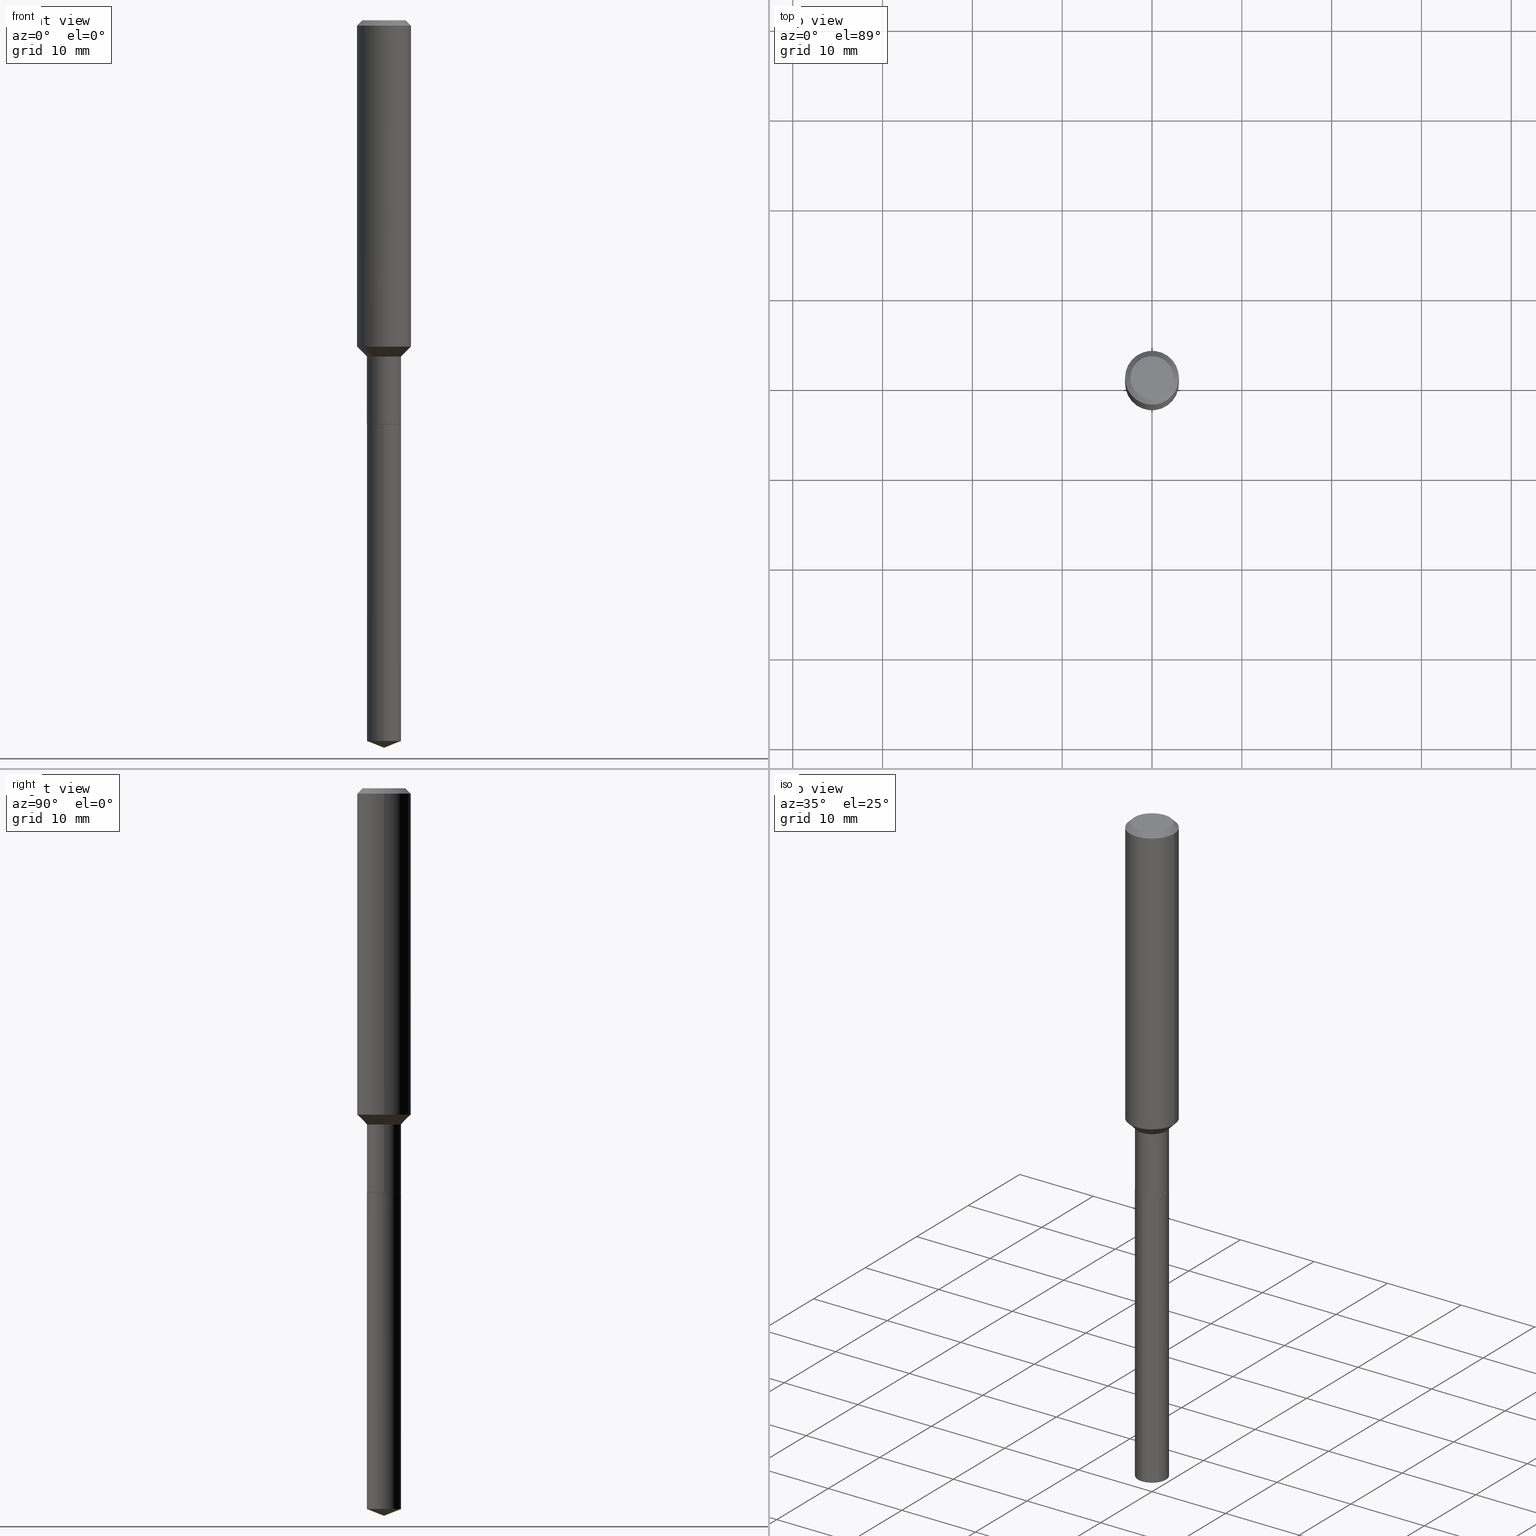
[diagram: canonical four-view strip — front | top / right | iso, engineering-drawing reading convention]
A machine part, canonical four-view strip (front | top / right | iso — engineering-drawing reading convention). The complete STEP part file that produces these views, byte-faithful:
ISO-10303-21;
HEADER;
FILE_DESCRIPTION (( 'STEP AP203' ),
    '1' );
FILE_NAME ('66614.STEP',
    '2024-04-25T02:03:16',
    ( '' ),
    ( '' ),
    'SwSTEP 2.0',
    'SolidWorks 2023',
    '' );
FILE_SCHEMA (( 'CONFIG_CONTROL_DESIGN' ));
ENDSEC;

DATA;
#1 = FACE_OUTER_BOUND ( 'NONE', #393, .T. ) ;
#2 = AXIS2_PLACEMENT_3D ( 'NONE', #414, #298, #69 ) ;
#3 = ORIENTED_EDGE ( 'NONE', *, *, #99, .F. ) ;
#4 = ORIENTED_EDGE ( 'NONE', *, *, #95, .T. ) ;
#5 = APPROVAL_ROLE ( '' ) ;
#6 = CC_DESIGN_PERSON_AND_ORGANIZATION_ASSIGNMENT ( #356, #166, ( #363 ) ) ;
#7 = COORDINATED_UNIVERSAL_TIME_OFFSET ( 5, 0, .BEHIND. ) ;
#8 = DIRECTION ( 'NONE',  ( 6.611014441532061856E-15, 0.9304175679820264611, 0.3665012267242923616 ) ) ;
#9 = ORIENTED_EDGE ( 'NONE', *, *, #211, .F. ) ;
#10 = DATE_AND_TIME ( #48, #42 ) ;
#11 = EDGE_LOOP ( 'NONE', ( #322, #134, #445, #466 ) ) ;
#12 = CONICAL_SURFACE ( 'NONE', #37, 99.94676754583939271, 1.195550537616117515 ) ;
#13 = ADVANCED_FACE ( 'NONE', ( #24 ), #303, .T. ) ;
#14 = AXIS2_PLACEMENT_3D ( 'NONE', #412, #77, #121 ) ;
#15 = PRODUCT_RELATED_PRODUCT_CATEGORY ( 'detail', '', ( #363 ) ) ;
#16 = ADVANCED_FACE ( 'NONE', ( #186 ), #112, .F. ) ;
#17 = CONICAL_SURFACE ( 'NONE', #404, 0.07479999999999997762, 0.7853981633974498333 ) ;
#18 = AXIS2_PLACEMENT_3D ( 'NONE', #86, #357, #200 ) ;
#19 = EDGE_CURVE ( 'NONE', #43, #376, #278, .T. ) ;
#20 = CARTESIAN_POINT ( 'NONE',  ( 3.603887379675036317E-29, -5.145396049053143934E-15, -1.473700000000000232 ) ) ;
#21 = CARTESIAN_POINT ( 'NONE',  ( 4.716267017698007905E-46, -6.733579360998555036E-32, -1.928573779297252010E-17 ) ) ;
#22 = ORIENTED_EDGE ( 'NONE', *, *, #294, .F. ) ;
#23 = DIRECTION ( 'NONE',  ( -2.445468806185136597E-29, 3.491481338843145583E-15, 1.000000000000000000 ) ) ;
#24 = FACE_OUTER_BOUND ( 'NONE', #461, .T. ) ;
#25 = CARTESIAN_POINT ( 'NONE',  ( 5.314859663485982660E-16, 0.07479999999999381588, -1.771700000000000719 ) ) ;
#26 = MANIFOLD_SOLID_BREP ( 'Body-Move/Copy2[2]', #405 ) ;
#27 = ADVANCED_FACE ( 'NONE', ( #119 ), #268, .T. ) ;
#28 = DIRECTION ( 'NONE',  ( 1.000000000000000000, -6.982962677686266711E-15, 4.876176775795936353E-29 ) ) ;
#29 = DIRECTION ( 'NONE',  ( 1.000000000000000000, -6.982962677686261977E-15, 0.000000000000000000 ) ) ;
#30 = AXIS2_PLACEMENT_3D ( 'NONE', #377, #33, #29 ) ;
#31 = DIRECTION ( 'NONE',  ( -2.445468806185136597E-29, 3.491481338843145583E-15, 1.000000000000000000 ) ) ;
#32 = EDGE_LOOP ( 'NONE', ( #3, #373, #482 ) ) ;
#33 = DIRECTION ( 'NONE',  ( -2.445468806185136597E-29, 3.491481338843145583E-15, 1.000000000000000000 ) ) ;
#34 = CARTESIAN_POINT ( 'NONE',  ( -0.07479999999999997762, -5.133267931857507370E-15, -1.473700000000000232 ) ) ;
#35 = LINE ( 'NONE', #348, #199 ) ;
#36 = ADVANCED_FACE ( 'NONE', ( #74 ), #485, .T. ) ;
#37 = AXIS2_PLACEMENT_3D ( 'NONE', #381, #346, #313 ) ;
#38 = DIRECTION ( 'NONE',  ( 2.445468806185136597E-29, -3.491481338843145583E-15, -1.000000000000000000 ) ) ;
#39 = VERTEX_POINT ( 'NONE', #411 ) ;
#40 = LINE ( 'NONE', #202, #79 ) ;
#41 = APPROVAL_ROLE ( '' ) ;
#42 = LOCAL_TIME ( 22, 3, 16.00000000000000000, #7 ) ;
#43 = VERTEX_POINT ( 'NONE', #311 ) ;
#44 = DIRECTION ( 'NONE',  ( -6.982962677686266711E-15, -1.000000000000000000, 0.000000000000000000 ) ) ;
#45 = PERSON_AND_ORGANIZATION ( #415, #139 ) ;
#46 = DIRECTION ( 'NONE',  ( -0.7071067811865486830, 7.493145998870358893E-15, 0.7071067811865464625 ) ) ;
#47 = SHAPE_DEFINITION_REPRESENTATION ( #122, #210 ) ;
#48 = CALENDAR_DATE ( 2024, 24, 4 ) ;
#49 = LINE ( 'NONE', #129, #72 ) ;
#50 = VERTEX_POINT ( 'NONE', #453 ) ;
#51 = VECTOR ( 'NONE', #444, 39.37007874015748143 ) ;
#52 = AXIS2_PLACEMENT_3D ( 'NONE', #272, #297, #232 ) ;
#53 = EDGE_CURVE ( 'NONE', #228, #183, #35, .T. ) ;
#54 = CIRCLE ( 'NONE', #184, 0.07480000000000000537 ) ;
#55 = DIRECTION ( 'NONE',  ( -2.445468806185136877E-29, 3.491481338843145188E-15, 1.000000000000000000 ) ) ;
#56 = CIRCLE ( 'NONE', #14, 0.07430000000000000493 ) ;
#57 = EDGE_CURVE ( 'NONE', #320, #282, #338, .T. ) ;
#58 = DIRECTION ( 'NONE',  ( -2.445498752953222356E-29, 3.491438453366782686E-15, 1.000000000000000000 ) ) ;
#59 = VERTEX_POINT ( 'NONE', #425 ) ;
#60 = VECTOR ( 'NONE', #104, 39.37007874015748143 ) ;
#61 =( CONVERSION_BASED_UNIT ( 'INCH', #416 ) LENGTH_UNIT ( ) NAMED_UNIT ( #260 ) );
#62 = DIRECTION ( 'NONE',  ( -2.445468806185136877E-29, 3.491481338843145188E-15, 1.000000000000000000 ) ) ;
#63 = ORIENTED_EDGE ( 'NONE', *, *, #203, .F. ) ;
#64 = DIRECTION ( 'NONE',  ( 1.000000000000000000, -6.982962677686265922E-15, 4.876176775795935793E-29 ) ) ;
#65 = ORIENTED_EDGE ( 'NONE', *, *, #216, .T. ) ;
#66 = CIRCLE ( 'NONE', #230, 0.1181000000000001632 ) ;
#67 = CARTESIAN_POINT ( 'NONE',  ( 4.332637083918206987E-29, -6.185857488028401870E-15, -1.771700000000000497 ) ) ;
#68 = ORIENTED_EDGE ( 'NONE', *, *, #253, .T. ) ;
#69 = DIRECTION ( 'NONE',  ( 1.000000000000000000, -6.982962677686264344E-15, 0.000000000000000000 ) ) ;
#70 = CIRCLE ( 'NONE', #128, 0.1181000000000001632 ) ;
#72 = VECTOR ( 'NONE', #8, 39.37007874015748143 ) ;
#71 = FACE_OUTER_BOUND ( 'NONE', #124, .T. ) ;
#73 = CC_DESIGN_PERSON_AND_ORGANIZATION_ASSIGNMENT ( #394, #284, ( #332 ) ) ;
#74 = FACE_OUTER_BOUND ( 'NONE', #81, .T. ) ;
#75 = ORIENTED_EDGE ( 'NONE', *, *, #306, .F. ) ;
#76 = ADVANCED_FACE ( 'NONE', ( #158 ), #292, .T. ) ;
#77 = DIRECTION ( 'NONE',  ( -2.445468806185136597E-29, 3.491481338843145583E-15, 1.000000000000000000 ) ) ;
#78 = VERTEX_POINT ( 'NONE', #316 ) ;
#79 = VECTOR ( 'NONE', #197, 39.37007874015748143 ) ;
#80 = SECURITY_CLASSIFICATION_LEVEL ( 'unclassified' ) ;
#81 = EDGE_LOOP ( 'NONE', ( #340, #262, #131, #244 ) ) ;
#82 = ADVANCED_FACE ( 'NONE', ( #164 ), #280, .F. ) ;
#83 = AXIS2_PLACEMENT_3D ( 'NONE', #152, #421, #489 ) ;
#84 = PERSON_AND_ORGANIZATION ( #415, #139 ) ;
#85 = CIRCLE ( 'NONE', #364, 0.07479999999999997762 ) ;
#86 = CARTESIAN_POINT ( 'NONE',  ( 2.358133508849003952E-46, -3.366789680499277518E-32, -9.642868896486260050E-18 ) ) ;
#87 = CARTESIAN_POINT ( 'NONE',  ( 5.776197320209328408E-31, -8.246878922347560526E-17, -0.02362000000000014435 ) ) ;
#88 = LOCAL_TIME ( 22, 3, 16.00000000000000000, #350 ) ;
#89 = ORIENTED_EDGE ( 'NONE', *, *, #253, .F. ) ;
#90 = DIRECTION ( 'NONE',  ( 2.445468806185136597E-29, -3.491481338843145583E-15, -1.000000000000000000 ) ) ;
#91 = EDGE_LOOP ( 'NONE', ( #9, #135 ) ) ;
#92 = PERSON_AND_ORGANIZATION ( #415, #139 ) ;
#93 = CARTESIAN_POINT ( 'NONE',  ( 5.776197320209328408E-31, -8.246878922347560526E-17, -0.02362000000000014435 ) ) ;
#94 = VERTEX_POINT ( 'NONE', #246 ) ;
#95 = EDGE_CURVE ( 'NONE', #417, #427, #428, .T. ) ;
#96 = CARTESIAN_POINT ( 'NONE',  ( 7.798589409789792218E-29, -1.113434918818361475E-14, -3.189000000000000501 ) ) ;
#97 = CARTESIAN_POINT ( 'NONE',  ( 4.331414349515115307E-29, -6.184111747358981944E-15, -1.771200000000000552 ) ) ;
#98 = AXIS2_PLACEMENT_3D ( 'NONE', #21, #182, #476 ) ;
#99 = EDGE_CURVE ( 'NONE', #327, #133, #49, .T. ) ;
#100 = DIRECTION ( 'NONE',  ( 1.000000000000000000, -6.982962677686261977E-15, 0.000000000000000000 ) ) ;
#101 = DIRECTION ( 'NONE',  ( 0.7071067811865486830, -2.468850131082268893E-15, 0.7071067811865464625 ) ) ;
#102 = EDGE_CURVE ( 'NONE', #376, #43, #329, .T. ) ;
#103 = AXIS2_PLACEMENT_3D ( 'NONE', #167, #159, #433 ) ;
#104 = DIRECTION ( 'NONE',  ( -2.445498752953222356E-29, 3.491438453366782686E-15, 1.000000000000000000 ) ) ;
#105 = ORIENTED_EDGE ( 'NONE', *, *, #114, .F. ) ;
#106 = DIRECTION ( 'NONE',  ( 1.000000000000000000, -6.982962677686267499E-15, 4.875432709231658792E-29 ) ) ;
#107 = EDGE_CURVE ( 'NONE', #327, #50, #440, .T. ) ;
#108 = DIRECTION ( 'NONE',  ( -6.982962677686266711E-15, -1.000000000000000000, 3.652203200085913145E-15 ) ) ;
#109 = CARTESIAN_POINT ( 'NONE',  ( -8.848083599624647937E-28, 1.263239336174787439E-13, 36.18107874015748138 ) ) ;
#110 = AXIS2_PLACEMENT_3D ( 'NONE', #93, #38, #460 ) ;
#111 =( NAMED_UNIT ( * ) SI_UNIT ( $, .STERADIAN. ) SOLID_ANGLE_UNIT ( ) );
#112 = PLANE ( 'NONE',  #214 ) ;
#113 = APPROVAL ( #251, 'UNSPECIFIED' ) ;
#114 = EDGE_CURVE ( 'NONE', #417, #183, #85, .T. ) ;
#115 = DIRECTION ( 'NONE',  ( -2.445498752953222356E-29, 3.491438453366782686E-15, 1.000000000000000000 ) ) ;
#116 = CARTESIAN_POINT ( 'NONE',  ( 4.332637083918206987E-29, -6.185857488028401870E-15, -1.771700000000000497 ) ) ;
#117 = DIRECTION ( 'NONE',  ( 1.000000000000000000, -6.982962677686270655E-15, 0.000000000000000000 ) ) ;
#118 = AXIS2_PLACEMENT_3D ( 'NONE', #150, #318, #283 ) ;
#119 = FACE_OUTER_BOUND ( 'NONE', #378, .T. ) ;
#120 = LOCAL_TIME ( 22, 3, 16.00000000000000000, #435 ) ;
#121 = DIRECTION ( 'NONE',  ( 1.000000000000000000, -6.982962677686268288E-15, 0.000000000000000000 ) ) ;
#122 = PRODUCT_DEFINITION_SHAPE ( 'NONE', 'NONE',  #332 ) ;
#123 = PERSON_AND_ORGANIZATION ( #415, #139 ) ;
#124 = EDGE_LOOP ( 'NONE', ( #293, #302, #22, #63 ) ) ;
#125 = EDGE_CURVE ( 'NONE', #175, #282, #285, .T. ) ;
#126 = CALENDAR_DATE ( 2024, 24, 4 ) ;
#127 = EDGE_LOOP ( 'NONE', ( #401, #270 ) ) ;
#128 = AXIS2_PLACEMENT_3D ( 'NONE', #309, #452, #117 ) ;
#129 = CARTESIAN_POINT ( 'NONE',  ( 7.798696453656895021E-29, -1.113419722778667310E-14, -3.189000000000000501 ) ) ;
#130 = CARTESIAN_POINT ( 'NONE',  ( 0.1181000000000001632, -5.818902799315985254E-15, -1.430400000000000116 ) ) ;
#131 = ORIENTED_EDGE ( 'NONE', *, *, #19, .F. ) ;
#132 = APPROVAL_DATE_TIME ( #10, #399 ) ;
#133 = VERTEX_POINT ( 'NONE', #239 ) ;
#134 = ORIENTED_EDGE ( 'NONE', *, *, #173, .T. ) ;
#135 = ORIENTED_EDGE ( 'NONE', *, *, #227, .F. ) ;
#136 = AXIS2_PLACEMENT_3D ( 'NONE', #109, #418, #149 ) ;
#137 = CARTESIAN_POINT ( 'NONE',  ( 0.07479999999999997762, -5.667721657344076734E-15, -1.473700000000000232 ) ) ;
#138 = ADVANCED_FACE ( 'NONE', ( #490 ), #12, .T. ) ;
#139 = ORGANIZATION ( 'UNSPECIFIED', 'UNSPECIFIED', '' ) ;
#140 = VECTOR ( 'NONE', #46, 39.37007874015748143 ) ;
#141 = DIRECTION ( 'NONE',  ( -2.445468806185136597E-29, 3.491481338843145583E-15, 1.000000000000000000 ) ) ;
#142 = DIRECTION ( 'NONE',  ( -2.438088387897960049E-29, 3.491481338843145188E-15, 1.000000000000000000 ) ) ;
#143 = CARTESIAN_POINT ( 'NONE',  ( -0.1180999999999999966, -1.699190877219676055E-15, -0.02362000000000014435 ) ) ;
#144 = DIRECTION ( 'NONE',  ( -2.445468806185136877E-29, 3.491481338843145188E-15, 1.000000000000000000 ) ) ;
#145 = DIRECTION ( 'NONE',  ( -2.445498752953222356E-29, 3.491438453366782686E-15, 1.000000000000000000 ) ) ;
#146 = EDGE_LOOP ( 'NONE', ( #289, #208, #383, #237 ) ) ;
#147 = VECTOR ( 'NONE', #385, 39.37007874015748143 ) ;
#148 = APPROVAL_PERSON_ORGANIZATION ( #123, #113, #41 ) ;
#149 = DIRECTION ( 'NONE',  ( -6.982962677686265922E-15, -1.000000000000000000, 3.498627837350024338E-15 ) ) ;
#150 = CARTESIAN_POINT ( 'NONE',  ( 5.776197320209328408E-31, -8.246878922347560526E-17, -0.02362000000000014435 ) ) ;
#151 = ORIENTED_EDGE ( 'NONE', *, *, #469, .F. ) ;
#152 = CARTESIAN_POINT ( 'NONE',  ( 4.332637083918206987E-29, -6.185857488028401870E-15, -1.771700000000000497 ) ) ;
#153 = ORIENTED_EDGE ( 'NONE', *, *, #99, .T. ) ;
#154 = LINE ( 'NONE', #261, #51 ) ;
#155 = DIRECTION ( 'NONE',  ( -2.445468806185136597E-29, 3.491481338843145583E-15, 1.000000000000000000 ) ) ;
#156 = VECTOR ( 'NONE', #426, 39.37007874015748143 ) ;
#157 = CIRCLE ( 'NONE', #323, 0.09447999999999998066 ) ;
#158 = FACE_OUTER_BOUND ( 'NONE', #287, .T. ) ;
#159 = DIRECTION ( 'NONE',  ( 2.445498752953222076E-29, -3.491438453366782686E-15, -1.000000000000000000 ) ) ;
#160 = CIRCLE ( 'NONE', #442, 0.1180999999999999966 ) ;
#161 = EDGE_LOOP ( 'NONE', ( #250, #172, #226, #351 ) ) ;
#162 = CARTESIAN_POINT ( 'NONE',  ( 0.09447999999999998066, -7.704367267948738690E-16, -1.928573779296752193E-17 ) ) ;
#163 = DATE_AND_TIME ( #398, #120 ) ;
#164 = FACE_OUTER_BOUND ( 'NONE', #127, .T. ) ;
#165 = ORIENTED_EDGE ( 'NONE', *, *, #125, .T. ) ;
#166 = PERSON_AND_ORGANIZATION_ROLE ( 'design_owner' ) ;
#167 = CARTESIAN_POINT ( 'NONE',  ( 4.332637083918206987E-29, -6.185857488028401870E-15, -1.771700000000000497 ) ) ;
#168 = ORIENTED_EDGE ( 'NONE', *, *, #107, .F. ) ;
#169 = APPROVAL_STATUS ( 'not_yet_approved' ) ;
#170 = CONICAL_SURFACE ( 'NONE', #180, 0.07430000000000000493, 0.7853981633975591903 ) ;
#171 = CLOSED_SHELL ( 'NONE', ( #36, #238, #138, #374, #319 ) ) ;
#172 = ORIENTED_EDGE ( 'NONE', *, *, #227, .T. ) ;
#173 = EDGE_CURVE ( 'NONE', #133, #50, #54, .T. ) ;
#174 = EDGE_CURVE ( 'NONE', #94, #39, #40, .T. ) ;
#175 = VERTEX_POINT ( 'NONE', #162 ) ;
#176 = EDGE_CURVE ( 'NONE', #282, #222, #217, .T. ) ;
#177 = VECTOR ( 'NONE', #209, 39.37007874015748854 ) ;
#178 = ADVANCED_FACE ( 'NONE', ( #431 ), #397, .T. ) ;
#179 = VECTOR ( 'NONE', #145, 39.37007874015748143 ) ;
#180 = AXIS2_PLACEMENT_3D ( 'NONE', #343, #23, #219 ) ;
#181 =( LENGTH_UNIT ( ) NAMED_UNIT ( * ) SI_UNIT ( $, .METRE. ) );
#182 = DIRECTION ( 'NONE',  ( -2.445468806185136597E-29, 3.491481338843145583E-15, 1.000000000000000000 ) ) ;
#183 = VERTEX_POINT ( 'NONE', #486 ) ;
#184 = AXIS2_PLACEMENT_3D ( 'NONE', #248, #454, #44 ) ;
#185 =( NAMED_UNIT ( * ) PLANE_ANGLE_UNIT ( ) SI_UNIT ( $, .RADIAN. ) );
#186 = FACE_OUTER_BOUND ( 'NONE', #91, .T. ) ;
#187 = EDGE_CURVE ( 'NONE', #320, #427, #66, .T. ) ;
#188 = APPLICATION_PROTOCOL_DEFINITION ( 'international standard', 'config_control_design', 1994, #395 ) ;
#189 = LINE ( 'NONE', #483, #301 ) ;
#190 = CC_DESIGN_APPROVAL ( #113, ( #245 ) ) ;
#191 = DIRECTION ( 'NONE',  ( 0.000000000000000000, 0.000000000000000000, 1.000000000000000000 ) ) ;
#192 = DIRECTION ( 'NONE',  ( -2.445498752953222356E-29, 3.491438453366782686E-15, 1.000000000000000000 ) ) ;
#193 = CARTESIAN_POINT ( 'NONE',  ( -5.223256082908894131E-16, -0.07480000000000619487, -1.771700000000000053 ) ) ;
#194 = DIRECTION ( 'NONE',  ( 1.000000000000000000, -6.982962677686266711E-15, 4.876176775795936353E-29 ) ) ;
#195 = ORIENTED_EDGE ( 'NONE', *, *, #469, .T. ) ;
#196 = EDGE_CURVE ( 'NONE', #427, #222, #349, .T. ) ;
#197 = DIRECTION ( 'NONE',  ( -0.7071067811866259545, 7.493145998870638150E-15, 0.7071067811864690800 ) ) ;
#198 = AXIS2_PLACEMENT_3D ( 'NONE', #409, #141, #407 ) ;
#199 = VECTOR ( 'NONE', #62, 39.37007874015748143 ) ;
#200 = DIRECTION ( 'NONE',  ( -1.000000000000000000, 6.982962677686265922E-15, -4.876176775795935793E-29 ) ) ;
#201 = EDGE_LOOP ( 'NONE', ( #68, #4, #305, #387 ) ) ;
#202 = CARTESIAN_POINT ( 'NONE',  ( -0.07430000000000000493, -5.657924235358647989E-15, -1.771700000000000497 ) ) ;
#203 = EDGE_CURVE ( 'NONE', #78, #228, #189, .T. ) ;
#204 = DATE_TIME_ROLE ( 'creation_date' ) ;
#205 = ORIENTED_EDGE ( 'NONE', *, *, #53, .F. ) ;
#206 = CALENDAR_DATE ( 2024, 24, 4 ) ;
#207 = APPROVAL_PERSON_ORGANIZATION ( #92, #249, #288 ) ;
#208 = ORIENTED_EDGE ( 'NONE', *, *, #306, .T. ) ;
#209 = DIRECTION ( 'NONE',  ( -6.497071151882115103E-15, -0.9304175679820237965, 0.3665012267242989119 ) ) ;
#210 = ADVANCED_BREP_SHAPE_REPRESENTATION ( '66614', ( #367, #26, #352 ), #330 ) ;
#211 = EDGE_CURVE ( 'NONE', #78, #94, #473, .T. ) ;
#212 = DIRECTION ( 'NONE',  ( -6.982962677686265922E-15, -1.000000000000000000, 3.652203200085913145E-15 ) ) ;
#213 = CYLINDRICAL_SURFACE ( 'NONE', #304, 0.07480000000000000537 ) ;
#214 = AXIS2_PLACEMENT_3D ( 'NONE', #116, #142, #64 ) ;
#215 = CC_DESIGN_APPROVAL ( #399, ( #402 ) ) ;
#216 = EDGE_CURVE ( 'NONE', #222, #282, #160, .T. ) ;
#217 = CIRCLE ( 'NONE', #118, 0.1180999999999999966 ) ;
#218 = CC_DESIGN_PERSON_AND_ORGANIZATION_ASSIGNMENT ( #84, #437, ( #402 ) ) ;
#219 = DIRECTION ( 'NONE',  ( 1.000000000000000000, -6.982962677686268288E-15, 0.000000000000000000 ) ) ;
#220 = ORIENTED_EDGE ( 'NONE', *, *, #362, .T. ) ;
#221 = CIRCLE ( 'NONE', #98, 0.09447999999999998066 ) ;
#222 = VERTEX_POINT ( 'NONE', #143 ) ;
#223 = AXIS2_PLACEMENT_3D ( 'NONE', #420, #275, #194 ) ;
#224 = DIRECTION ( 'NONE',  ( -2.445468806185136597E-29, 3.491481338843145583E-15, 1.000000000000000000 ) ) ;
#225 = FACE_OUTER_BOUND ( 'NONE', #448, .T. ) ;
#226 = ORIENTED_EDGE ( 'NONE', *, *, #203, .T. ) ;
#227 = EDGE_CURVE ( 'NONE', #94, #78, #56, .T. ) ;
#228 = VERTEX_POINT ( 'NONE', #372 ) ;
#229 = CARTESIAN_POINT ( 'NONE',  ( 0.1180999999999999966, -9.071566814582237199E-16, -0.02362000000000014435 ) ) ;
#230 = AXIS2_PLACEMENT_3D ( 'NONE', #379, #336, #273 ) ;
#231 = CYLINDRICAL_SURFACE ( 'NONE', #366, 0.07479999999999999150 ) ;
#232 = DIRECTION ( 'NONE',  ( -6.982962677686265922E-15, -1.000000000000000000, 3.652203200085913145E-15 ) ) ;
#233 = DIRECTION ( 'NONE',  ( 0.7071067811866259545, -2.468850131083078659E-15, 0.7071067811864690800 ) ) ;
#234 = DIRECTION ( 'NONE',  ( -2.445468806185136597E-29, 3.491481338843145583E-15, 1.000000000000000000 ) ) ;
#235 = CARTESIAN_POINT ( 'NONE',  ( 4.716267017698007905E-46, -6.733579360998555036E-32, -1.928573779297252010E-17 ) ) ;
#236 = DIRECTION ( 'NONE',  ( 1.000000000000000000, -6.982962677686266711E-15, 0.000000000000000000 ) ) ;
#237 = ORIENTED_EDGE ( 'NONE', *, *, #216, .F. ) ;
#238 = ADVANCED_FACE ( 'NONE', ( #225 ), #472, .T. ) ;
#239 = CARTESIAN_POINT ( 'NONE',  ( 5.314859663486322856E-16, 0.07479999999998898641, -3.159535496424002776 ) ) ;
#240 = ORIENTED_EDGE ( 'NONE', *, *, #362, .F. ) ;
#241 = DIRECTION ( 'NONE',  ( 1.000000000000000000, -6.982962677686264344E-15, 0.000000000000000000 ) ) ;
#242 = APPROVAL_DATE_TIME ( #321, #249 ) ;
#243 = EDGE_CURVE ( 'NONE', #175, #59, #221, .T. ) ;
#244 = ORIENTED_EDGE ( 'NONE', *, *, #464, .F. ) ;
#245 = SECURITY_CLASSIFICATION ( '', '', #80 ) ;
#246 = CARTESIAN_POINT ( 'NONE',  ( -0.07430000000000000493, -5.655275008184536788E-15, -1.771700000000000497 ) ) ;
#247 = ORIENTED_EDGE ( 'NONE', *, *, #243, .F. ) ;
#248 = CARTESIAN_POINT ( 'NONE',  ( 7.726587059727322171E-29, -1.103139970719054150E-14, -3.159535496424002776 ) ) ;
#249 = APPROVAL ( #169, 'UNSPECIFIED' ) ;
#250 = ORIENTED_EDGE ( 'NONE', *, *, #174, .F. ) ;
#251 = APPROVAL_STATUS ( 'not_yet_approved' ) ;
#252 = ORIENTED_EDGE ( 'NONE', *, *, #187, .T. ) ;
#253 = EDGE_CURVE ( 'NONE', #183, #417, #277, .T. ) ;
#254 = APPROVAL_PERSON_ORGANIZATION ( #432, #399, #5 ) ;
#255 = VECTOR ( 'NONE', #144, 39.37007874015748143 ) ;
#256 = DIRECTION ( 'NONE',  ( -2.445468806185136597E-29, 3.491481338843145583E-15, 1.000000000000000000 ) ) ;
#257 = CARTESIAN_POINT ( 'NONE',  ( -0.07479999999999999150, 5.314859663485548786E-16, -3.679363447510669380E-30 ) ) ;
#258 = FACE_OUTER_BOUND ( 'NONE', #11, .T. ) ;
#259 = UNCERTAINTY_MEASURE_WITH_UNIT (LENGTH_MEASURE( 1.000000000000000082E-05 ), #61, 'distance_accuracy_value', 'NONE');
#260 = DIMENSIONAL_EXPONENTS ( 1.000000000000000000, 0.000000000000000000, 0.000000000000000000, 0.000000000000000000, 0.000000000000000000, 0.000000000000000000, 0.000000000000000000 ) ;
#261 = CARTESIAN_POINT ( 'NONE',  ( -0.1180999999999999966, 7.422191030112725094E-16, -0.02362000000000014435 ) ) ;
#262 = ORIENTED_EDGE ( 'NONE', *, *, #263, .T. ) ;
#263 = EDGE_CURVE ( 'NONE', #133, #376, #479, .T. ) ;
#264 = DIRECTION ( 'NONE',  ( -2.445468806185136597E-29, 3.491481338843145583E-15, 1.000000000000000000 ) ) ;
#265 = CC_DESIGN_APPROVAL ( #249, ( #332 ) ) ;
#266 = AXIS2_PLACEMENT_3D ( 'NONE', #447, #192, #108 ) ;
#267 = CARTESIAN_POINT ( 'NONE',  ( -0.1181000000000001632, -4.155063936148555639E-15, -1.430400000000000116 ) ) ;
#268 = CYLINDRICAL_SURFACE ( 'NONE', #223, 0.1181000000000000799 ) ;
#269 = CARTESIAN_POINT ( 'NONE',  ( 5.776197320209328408E-31, -8.246878922347560526E-17, -0.02362000000000014435 ) ) ;
#270 = ORIENTED_EDGE ( 'NONE', *, *, #243, .T. ) ;
#271 = CARTESIAN_POINT ( 'NONE',  ( 0.000000000000000000, 0.000000000000000000, 0.000000000000000000 ) ) ;
#272 = CARTESIAN_POINT ( 'NONE',  ( 4.332637083918206987E-29, -6.185857488028401870E-15, -1.771700000000000497 ) ) ;
#273 = DIRECTION ( 'NONE',  ( 1.000000000000000000, -6.982962677686270655E-15, 0.000000000000000000 ) ) ;
#274 = CYLINDRICAL_SURFACE ( 'NONE', #406, 0.1181000000000000799 ) ;
#275 = DIRECTION ( 'NONE',  ( -2.445468806185136597E-29, 3.491481338843145583E-15, 1.000000000000000000 ) ) ;
#276 = DIRECTION ( 'NONE',  ( -2.445468806185136597E-29, 3.491481338843145583E-15, 1.000000000000000000 ) ) ;
#277 = CIRCLE ( 'NONE', #2, 0.07479999999999997762 ) ;
#278 = CIRCLE ( 'NONE', #52, 0.07480000000000000537 ) ;
#279 = COORDINATED_UNIVERSAL_TIME_OFFSET ( 5, 0, .BEHIND. ) ;
#280 = PLANE ( 'NONE',  #18 ) ;
#281 = CARTESIAN_POINT ( 'NONE',  ( 7.798695523167827716E-29, -1.113419722778666995E-14, -3.189000000000000501 ) ) ;
#282 = VERTEX_POINT ( 'NONE', #229 ) ;
#283 = DIRECTION ( 'NONE',  ( 1.000000000000000000, -6.982962677686266711E-15, 0.000000000000000000 ) ) ;
#284 = PERSON_AND_ORGANIZATION_ROLE ( 'creator' ) ;
#285 = LINE ( 'NONE', #424, #147 ) ;
#286 = AXIS2_PLACEMENT_3D ( 'NONE', #97, #256, #100 ) ;
#287 = EDGE_LOOP ( 'NONE', ( #247, #165, #326, #151 ) ) ;
#288 = APPROVAL_ROLE ( '' ) ;
#289 = ORIENTED_EDGE ( 'NONE', *, *, #196, .F. ) ;
#290 = DIRECTION ( 'NONE',  ( -2.445498752953222356E-29, 3.491438453366782686E-15, 1.000000000000000000 ) ) ;
#291 = VECTOR ( 'NONE', #101, 39.37007874015748143 ) ;
#292 = CONICAL_SURFACE ( 'NONE', #110, 0.1180999999999999966, 0.7853981633974459475 ) ;
#293 = ORIENTED_EDGE ( 'NONE', *, *, #211, .T. ) ;
#294 = EDGE_CURVE ( 'NONE', #228, #39, #410, .T. ) ;
#295 = AXIS2_PLACEMENT_3D ( 'NONE', #20, #335, #475 ) ;
#296 = ORIENTED_EDGE ( 'NONE', *, *, #334, .F. ) ;
#297 = DIRECTION ( 'NONE',  ( -2.445498752953222356E-29, 3.491438453366782686E-15, 1.000000000000000000 ) ) ;
#298 = DIRECTION ( 'NONE',  ( -2.445468806185136597E-29, 3.491481338843145583E-15, 1.000000000000000000 ) ) ;
#299 = ORIENTED_EDGE ( 'NONE', *, *, #95, .F. ) ;
#300 = FACE_OUTER_BOUND ( 'NONE', #458, .T. ) ;
#301 = VECTOR ( 'NONE', #233, 39.37007874015748143 ) ;
#302 = ORIENTED_EDGE ( 'NONE', *, *, #174, .T. ) ;
#303 = CONICAL_SURFACE ( 'NONE', #295, 0.07479999999999997762, 0.7853981633974498333 ) ;
#304 = AXIS2_PLACEMENT_3D ( 'NONE', #67, #115, #446 ) ;
#305 = ORIENTED_EDGE ( 'NONE', *, *, #187, .F. ) ;
#306 = EDGE_CURVE ( 'NONE', #427, #320, #70, .T. ) ;
#307 = CARTESIAN_POINT ( 'NONE',  ( 0.000000000000000000, 0.000000000000000000, 0.000000000000000000 ) ) ;
#308 = ORIENTED_EDGE ( 'NONE', *, *, #125, .F. ) ;
#309 = CARTESIAN_POINT ( 'NONE',  ( 3.497998580367219776E-29, -4.994214907081235414E-15, -1.430400000000000116 ) ) ;
#310 = CARTESIAN_POINT ( 'NONE',  ( 3.603887379675036317E-29, -5.145396049053143934E-15, -1.473700000000000232 ) ) ;
#311 = CARTESIAN_POINT ( 'NONE',  ( -5.223256082908894131E-16, -0.07480000000000619487, -1.771700000000000053 ) ) ;
#312 = EDGE_LOOP ( 'NONE', ( #240, #450, #396, #105 ) ) ;
#313 = DIRECTION ( 'NONE',  ( -6.982962677686265922E-15, -1.000000000000000000, 3.498627837350024338E-15 ) ) ;
#314 = PERSON_AND_ORGANIZATION_ROLE ( 'classification_officer' ) ;
#315 = AXIS2_PLACEMENT_3D ( 'NONE', #87, #90, #438 ) ;
#316 = CARTESIAN_POINT ( 'NONE',  ( 0.07430000000000000493, -6.704691614980491663E-15, -1.771700000000000497 ) ) ;
#317 = ORIENTED_EDGE ( 'NONE', *, *, #196, .T. ) ;
#318 = DIRECTION ( 'NONE',  ( -2.445468806185136597E-29, 3.491481338843145583E-15, 1.000000000000000000 ) ) ;
#319 = ADVANCED_FACE ( 'NONE', ( #1 ), #463, .F. ) ;
#320 = VERTEX_POINT ( 'NONE', #130 ) ;
#321 = DATE_AND_TIME ( #126, #468 ) ;
#322 = ORIENTED_EDGE ( 'NONE', *, *, #263, .F. ) ;
#323 = AXIS2_PLACEMENT_3D ( 'NONE', #235, #224, #106 ) ;
#324 = DATE_AND_TIME ( #353, #88 ) ;
#325 = CARTESIAN_POINT ( 'NONE',  ( 4.332637083918206987E-29, -6.185857488028401870E-15, -1.771700000000000497 ) ) ;
#326 = ORIENTED_EDGE ( 'NONE', *, *, #176, .T. ) ;
#327 = VERTEX_POINT ( 'NONE', #281 ) ;
#328 = ADVANCED_FACE ( 'NONE', ( #429 ), #390, .T. ) ;
#329 = CIRCLE ( 'NONE', #389, 0.07480000000000000537 ) ;
#330 =( GEOMETRIC_REPRESENTATION_CONTEXT ( 3 ) GLOBAL_UNCERTAINTY_ASSIGNED_CONTEXT ( ( #259 ) ) GLOBAL_UNIT_ASSIGNED_CONTEXT ( ( #61, #185, #111 ) ) REPRESENTATION_CONTEXT ( 'NONE', 'WORKASPACE' ) );
#331 = LINE ( 'NONE', #137, #291 ) ;
#332 = PRODUCT_DEFINITION ( 'UNKNOWN', '', #402, #361 ) ;
#333 = DIRECTION ( 'NONE',  ( -2.445468806185136597E-29, 3.491481338843145583E-15, 1.000000000000000000 ) ) ;
#334 = EDGE_CURVE ( 'NONE', #50, #133, #380, .T. ) ;
#335 = DIRECTION ( 'NONE',  ( -2.445468806185136597E-29, 3.491481338843145583E-15, 1.000000000000000000 ) ) ;
#336 = DIRECTION ( 'NONE',  ( -2.445468806185136597E-29, 3.491481338843145583E-15, 1.000000000000000000 ) ) ;
#337 = LINE ( 'NONE', #193, #60 ) ;
#338 = LINE ( 'NONE', #478, #255 ) ;
#339 = CARTESIAN_POINT ( 'NONE',  ( -0.1181000000000000799, 8.391509709326788873E-16, -5.809262341591047988E-30 ) ) ;
#340 = ORIENTED_EDGE ( 'NONE', *, *, #334, .T. ) ;
#341 = MECHANICAL_CONTEXT ( 'NONE', #395, 'mechanical' ) ;
#342 = VECTOR ( 'NONE', #55, 39.37007874015748143 ) ;
#343 = CARTESIAN_POINT ( 'NONE',  ( 4.332637083918206987E-29, -6.185857488028401870E-15, -1.771700000000000497 ) ) ;
#344 = CARTESIAN_POINT ( 'NONE',  ( 0.000000000000000000, 0.000000000000000000, 0.000000000000000000 ) ) ;
#345 = EDGE_CURVE ( 'NONE', #39, #228, #370, .T. ) ;
#346 = DIRECTION ( 'NONE',  ( -2.445498752953222356E-29, 3.491438453366782686E-15, 1.000000000000000000 ) ) ;
#347 = CARTESIAN_POINT ( 'NONE',  ( 0.000000000000000000, 0.000000000000000000, 0.000000000000000000 ) ) ;
#348 = CARTESIAN_POINT ( 'NONE',  ( 0.07479999999999999150, -5.223256082909327018E-16, 3.647380228295360164E-30 ) ) ;
#349 = LINE ( 'NONE', #339, #156 ) ;
#350 = COORDINATED_UNIVERSAL_TIME_OFFSET ( 5, 0, .BEHIND. ) ;
#351 = ORIENTED_EDGE ( 'NONE', *, *, #345, .F. ) ;
#352 = AXIS2_PLACEMENT_3D ( 'NONE', #307, #191, #484 ) ;
#353 = CALENDAR_DATE ( 2024, 24, 4 ) ;
#354 = ORIENTED_EDGE ( 'NONE', *, *, #114, .T. ) ;
#355 = APPROVAL_STATUS ( 'not_yet_approved' ) ;
#356 = PERSON_AND_ORGANIZATION ( #415, #139 ) ;
#357 = DIRECTION ( 'NONE',  ( 2.438088387897960049E-29, -3.491481338843145188E-15, -1.000000000000000000 ) ) ;
#358 = DATE_AND_TIME ( #206, #481 ) ;
#359 = APPLICATION_CONTEXT ( 'configuration controlled 3d designs of mechanical parts and assemblies' ) ;
#360 = CC_DESIGN_PERSON_AND_ORGANIZATION_ASSIGNMENT ( #45, #386, ( #402 ) ) ;
#361 = DESIGN_CONTEXT ( 'detailed design', #359, 'design' ) ;
#362 = EDGE_CURVE ( 'NONE', #39, #417, #403, .T. ) ;
#363 = PRODUCT ( '66614', '66614', '', ( #341 ) ) ;
#364 = AXIS2_PLACEMENT_3D ( 'NONE', #434, #234, #241 ) ;
#365 = EDGE_CURVE ( 'NONE', #183, #320, #331, .T. ) ;
#366 = AXIS2_PLACEMENT_3D ( 'NONE', #271, #264, #375 ) ;
#367 = MANIFOLD_SOLID_BREP ( 'Body-Move/Copy2[1]', #171 ) ;
#368 = AXIS2_PLACEMENT_3D ( 'NONE', #344, #276, #384 ) ;
#369 = DIRECTION ( 'NONE',  ( 1.000000000000000000, -6.982962677686264344E-15, 0.000000000000000000 ) ) ;
#370 = CIRCLE ( 'NONE', #286, 0.07480000000000000537 ) ;
#371 = ORIENTED_EDGE ( 'NONE', *, *, #423, .F. ) ;
#372 = CARTESIAN_POINT ( 'NONE',  ( 0.07480000000000000537, -6.706437355649913956E-15, -1.771200000000000552 ) ) ;
#373 = ORIENTED_EDGE ( 'NONE', *, *, #107, .T. ) ;
#374 = ADVANCED_FACE ( 'NONE', ( #258 ), #213, .T. ) ;
#375 = DIRECTION ( 'NONE',  ( 1.000000000000000000, -6.982962677686266711E-15, 4.876176775795936353E-29 ) ) ;
#376 = VERTEX_POINT ( 'NONE', #474 ) ;
#377 = CARTESIAN_POINT ( 'NONE',  ( 4.331414349515115307E-29, -6.184111747358981944E-15, -1.771200000000000552 ) ) ;
#378 = EDGE_LOOP ( 'NONE', ( #252, #317, #487, #451 ) ) ;
#379 = CARTESIAN_POINT ( 'NONE',  ( 3.497998580367219776E-29, -4.994214907081235414E-15, -1.430400000000000116 ) ) ;
#380 = CIRCLE ( 'NONE', #449, 0.07480000000000000537 ) ;
#381 = CARTESIAN_POINT ( 'NONE',  ( -8.848083599624647937E-28, 1.263239336174787439E-13, 36.18107874015748138 ) ) ;
#382 = CC_DESIGN_PERSON_AND_ORGANIZATION_ASSIGNMENT ( #456, #314, ( #245 ) ) ;
#383 = ORIENTED_EDGE ( 'NONE', *, *, #57, .T. ) ;
#384 = DIRECTION ( 'NONE',  ( 1.000000000000000000, -6.982962677686266711E-15, 4.876176775795936353E-29 ) ) ;
#385 = DIRECTION ( 'NONE',  ( 0.7071067811865459074, -7.319954787623251312E-15, -0.7071067811865492381 ) ) ;
#386 = PERSON_AND_ORGANIZATION_ROLE ( 'design_supplier' ) ;
#387 = ORIENTED_EDGE ( 'NONE', *, *, #365, .F. ) ;
#388 = APPLICATION_PROTOCOL_DEFINITION ( 'international standard', 'config_control_design', 1994, #359 ) ;
#389 = AXIS2_PLACEMENT_3D ( 'NONE', #325, #290, #212 ) ;
#390 = CONICAL_SURFACE ( 'NONE', #315, 0.1180999999999999966, 0.7853981633974459475 ) ;
#391 = CARTESIAN_POINT ( 'NONE',  ( -0.07479999999999997762, -4.613910082704589154E-15, -1.473700000000000232 ) ) ;
#392 = ADVANCED_FACE ( 'NONE', ( #419 ), #17, .T. ) ;
#393 = EDGE_LOOP ( 'NONE', ( #467, #439 ) ) ;
#394 = PERSON_AND_ORGANIZATION ( #415, #139 ) ;
#395 = APPLICATION_CONTEXT ( 'configuration controlled 3d designs of mechanical parts and assemblies' ) ;
#396 = ORIENTED_EDGE ( 'NONE', *, *, #53, .T. ) ;
#397 = CYLINDRICAL_SURFACE ( 'NONE', #368, 0.07479999999999999150 ) ;
#398 = CALENDAR_DATE ( 2024, 24, 4 ) ;
#399 = APPROVAL ( #355, 'UNSPECIFIED' ) ;
#400 = CARTESIAN_POINT ( 'NONE',  ( 7.726587059727322171E-29, -1.103139970719054150E-14, -3.159535496424002776 ) ) ;
#401 = ORIENTED_EDGE ( 'NONE', *, *, #423, .T. ) ;
#402 = PRODUCT_DEFINITION_FORMATION_WITH_SPECIFIED_SOURCE ( 'ANY', '', #363, .NOT_KNOWN. ) ;
#403 = LINE ( 'NONE', #257, #342 ) ;
#404 = AXIS2_PLACEMENT_3D ( 'NONE', #310, #333, #369 ) ;
#405 = CLOSED_SHELL ( 'NONE', ( #457, #76, #27, #392, #436, #178, #13, #441, #328, #82, #16, #470 ) ) ;
#406 = AXIS2_PLACEMENT_3D ( 'NONE', #347, #31, #28 ) ;
#407 = DIRECTION ( 'NONE',  ( 1.000000000000000000, -6.982962677686268288E-15, 0.000000000000000000 ) ) ;
#408 = ORIENTED_EDGE ( 'NONE', *, *, #365, .T. ) ;
#409 = CARTESIAN_POINT ( 'NONE',  ( 4.332637083918206987E-29, -6.185857488028401870E-15, -1.771700000000000497 ) ) ;
#410 = CIRCLE ( 'NONE', #30, 0.07480000000000000537 ) ;
#411 = CARTESIAN_POINT ( 'NONE',  ( -0.07480000000000000537, -5.133267931857507370E-15, -1.771200000000000552 ) ) ;
#412 = CARTESIAN_POINT ( 'NONE',  ( 4.332637083918206987E-29, -6.185857488028401870E-15, -1.771700000000000497 ) ) ;
#413 = CC_DESIGN_SECURITY_CLASSIFICATION ( #245, ( #402 ) ) ;
#414 = CARTESIAN_POINT ( 'NONE',  ( 3.603887379675036317E-29, -5.145396049053143934E-15, -1.473700000000000232 ) ) ;
#415 = PERSON ( 'UNSPECIFIED', 'UNSPECIFIED', 'UNSPECIFIED', ('UNSPECIFIED'), ('UNSPECIFIED'), ('UNSPECIFIED') ) ;
#416 = LENGTH_MEASURE_WITH_UNIT ( LENGTH_MEASURE( 0.02539999999999999897 ), #181 );
#417 = VERTEX_POINT ( 'NONE', #34 ) ;
#418 = DIRECTION ( 'NONE',  ( -2.445498752953222356E-29, 3.491438453366782686E-15, 1.000000000000000000 ) ) ;
#419 = FACE_OUTER_BOUND ( 'NONE', #201, .T. ) ;
#420 = CARTESIAN_POINT ( 'NONE',  ( 0.000000000000000000, 0.000000000000000000, 0.000000000000000000 ) ) ;
#421 = DIRECTION ( 'NONE',  ( -2.445468806185136597E-29, 3.491481338843145583E-15, 1.000000000000000000 ) ) ;
#422 = CONICAL_SURFACE ( 'NONE', #198, 0.07430000000000000493, 0.7853981633975591903 ) ;
#423 = EDGE_CURVE ( 'NONE', #59, #175, #157, .T. ) ;
#424 = CARTESIAN_POINT ( 'NONE',  ( 0.1180999999999999966, -8.926936027602933910E-16, -0.02362000000000014435 ) ) ;
#425 = CARTESIAN_POINT ( 'NONE',  ( -0.09447999999999998066, 7.009847083995354710E-16, -1.928573779297727792E-17 ) ) ;
#426 = DIRECTION ( 'NONE',  ( -2.445468806185136877E-29, 3.491481338843145188E-15, 1.000000000000000000 ) ) ;
#427 = VERTEX_POINT ( 'NONE', #267 ) ;
#428 = LINE ( 'NONE', #391, #140 ) ;
#429 = FACE_OUTER_BOUND ( 'NONE', #480, .T. ) ;
#430 = ORIENTED_EDGE ( 'NONE', *, *, #294, .T. ) ;
#431 = FACE_OUTER_BOUND ( 'NONE', #312, .T. ) ;
#432 = PERSON_AND_ORGANIZATION ( #415, #139 ) ;
#433 = DIRECTION ( 'NONE',  ( 6.982962677686265922E-15, 1.000000000000000000, -3.491438453366782686E-15 ) ) ;
#434 = CARTESIAN_POINT ( 'NONE',  ( 3.603887379675036317E-29, -5.145396049053143934E-15, -1.473700000000000232 ) ) ;
#435 = COORDINATED_UNIVERSAL_TIME_OFFSET ( 5, 0, .BEHIND. ) ;
#436 = ADVANCED_FACE ( 'NONE', ( #300 ), #231, .T. ) ;
#437 = PERSON_AND_ORGANIZATION_ROLE ( 'creator' ) ;
#438 = DIRECTION ( 'NONE',  ( -1.000000000000000000, 6.982962677686266711E-15, 0.000000000000000000 ) ) ;
#439 = ORIENTED_EDGE ( 'NONE', *, *, #102, .T. ) ;
#440 = LINE ( 'NONE', #96, #177 ) ;
#441 = ADVANCED_FACE ( 'NONE', ( #488 ), #274, .T. ) ;
#442 = AXIS2_PLACEMENT_3D ( 'NONE', #269, #155, #236 ) ;
#443 = DIRECTION ( 'NONE',  ( -6.982962677686266711E-15, -1.000000000000000000, 0.000000000000000000 ) ) ;
#444 = DIRECTION ( 'NONE',  ( -0.7071067811865459074, 2.468850131082239706E-15, -0.7071067811865492381 ) ) ;
#445 = ORIENTED_EDGE ( 'NONE', *, *, #464, .T. ) ;
#446 = DIRECTION ( 'NONE',  ( -6.982962677686266711E-15, -1.000000000000000000, 3.652203200085913145E-15 ) ) ;
#447 = CARTESIAN_POINT ( 'NONE',  ( 4.332637083918206987E-29, -6.185857488028401870E-15, -1.771700000000000497 ) ) ;
#448 = EDGE_LOOP ( 'NONE', ( #168, #153, #296 ) ) ;
#449 = AXIS2_PLACEMENT_3D ( 'NONE', #400, #58, #443 ) ;
#450 = ORIENTED_EDGE ( 'NONE', *, *, #345, .T. ) ;
#451 = ORIENTED_EDGE ( 'NONE', *, *, #57, .F. ) ;
#452 = DIRECTION ( 'NONE',  ( -2.445468806185136597E-29, 3.491481338843145583E-15, 1.000000000000000000 ) ) ;
#453 = CARTESIAN_POINT ( 'NONE',  ( -5.223256082908554921E-16, -0.07480000000001103821, -3.159535496424002776 ) ) ;
#454 = DIRECTION ( 'NONE',  ( -2.445498752953222356E-29, 3.491438453366782686E-15, 1.000000000000000000 ) ) ;
#455 = APPROVAL_DATE_TIME ( #358, #113 ) ;
#456 = PERSON_AND_ORGANIZATION ( #415, #139 ) ;
#457 = ADVANCED_FACE ( 'NONE', ( #71 ), #170, .T. ) ;
#458 = EDGE_LOOP ( 'NONE', ( #430, #220, #89, #205 ) ) ;
#459 = CC_DESIGN_DATE_AND_TIME_ASSIGNMENT ( #324, #462, ( #245 ) ) ;
#460 = DIRECTION ( 'NONE',  ( -1.000000000000000000, 6.982962677686266711E-15, 0.000000000000000000 ) ) ;
#461 = EDGE_LOOP ( 'NONE', ( #299, #354, #408, #75 ) ) ;
#462 = DATE_TIME_ROLE ( 'classification_date' ) ;
#463 = PLANE ( 'NONE',  #103 ) ;
#464 = EDGE_CURVE ( 'NONE', #50, #43, #337, .T. ) ;
#465 = COORDINATED_UNIVERSAL_TIME_OFFSET ( 5, 0, .BEHIND. ) ;
#466 = ORIENTED_EDGE ( 'NONE', *, *, #102, .F. ) ;
#467 = ORIENTED_EDGE ( 'NONE', *, *, #19, .T. ) ;
#468 = LOCAL_TIME ( 22, 3, 16.00000000000000000, #279 ) ;
#469 = EDGE_CURVE ( 'NONE', #59, #222, #154, .T. ) ;
#470 = ADVANCED_FACE ( 'NONE', ( #477 ), #422, .T. ) ;
#471 = CC_DESIGN_DATE_AND_TIME_ASSIGNMENT ( #163, #204, ( #332 ) ) ;
#472 = CONICAL_SURFACE ( 'NONE', #136, 99.94676754583939271, 1.195550537616117515 ) ;
#473 = CIRCLE ( 'NONE', #83, 0.07430000000000000493 ) ;
#474 = CARTESIAN_POINT ( 'NONE',  ( 5.314859663486323842E-16, 0.07479999999999380200, -1.771700000000000719 ) ) ;
#475 = DIRECTION ( 'NONE',  ( 1.000000000000000000, -6.982962677686264344E-15, 0.000000000000000000 ) ) ;
#476 = DIRECTION ( 'NONE',  ( 1.000000000000000000, -6.982962677686267499E-15, 4.875432709231658792E-29 ) ) ;
#477 = FACE_OUTER_BOUND ( 'NONE', #161, .T. ) ;
#478 = CARTESIAN_POINT ( 'NONE',  ( 0.1181000000000000799, -8.246878922347486570E-16, 5.758764772215004644E-30 ) ) ;
#479 = LINE ( 'NONE', #25, #179 ) ;
#480 = EDGE_LOOP ( 'NONE', ( #308, #371, #195, #65 ) ) ;
#481 = LOCAL_TIME ( 22, 3, 16.00000000000000000, #465 ) ;
#482 = ORIENTED_EDGE ( 'NONE', *, *, #173, .F. ) ;
#483 = CARTESIAN_POINT ( 'NONE',  ( 0.07430000000000000493, -6.704691614980491663E-15, -1.771700000000000497 ) ) ;
#484 = DIRECTION ( 'NONE',  ( 1.000000000000000000, 0.000000000000000000, 0.000000000000000000 ) ) ;
#485 = CYLINDRICAL_SURFACE ( 'NONE', #266, 0.07480000000000000537 ) ;
#486 = CARTESIAN_POINT ( 'NONE',  ( 0.07479999999999997762, -5.667721657344076734E-15, -1.473700000000000232 ) ) ;
#487 = ORIENTED_EDGE ( 'NONE', *, *, #176, .F. ) ;
#488 = FACE_OUTER_BOUND ( 'NONE', #146, .T. ) ;
#489 = DIRECTION ( 'NONE',  ( 1.000000000000000000, -6.982962677686268288E-15, 0.000000000000000000 ) ) ;
#490 = FACE_OUTER_BOUND ( 'NONE', #32, .T. ) ;
ENDSEC;
END-ISO-10303-21;
